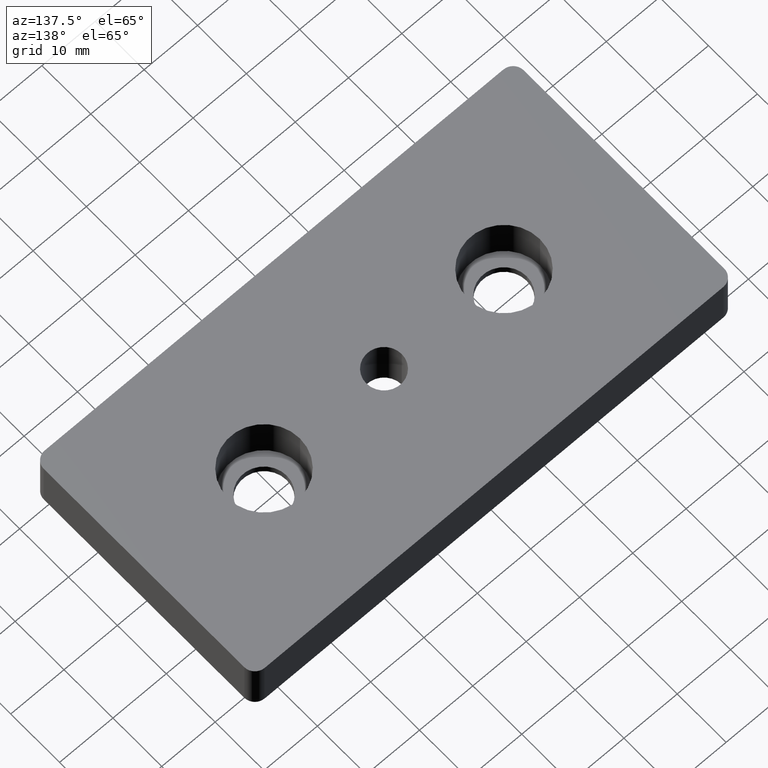
[diagram: clean part render]
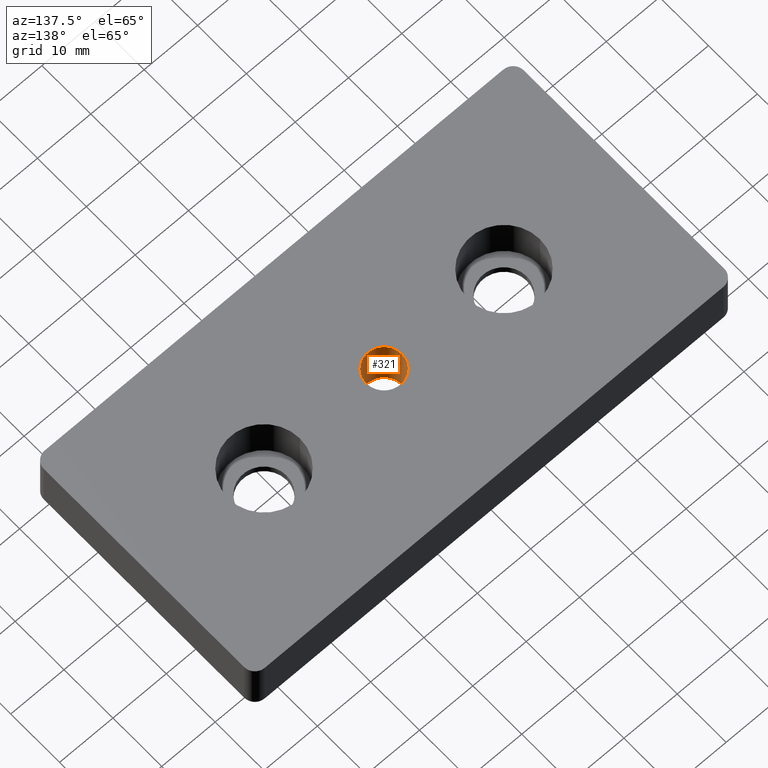
[diagram: same view with one face highlighted and labeled with its STEP entity id]
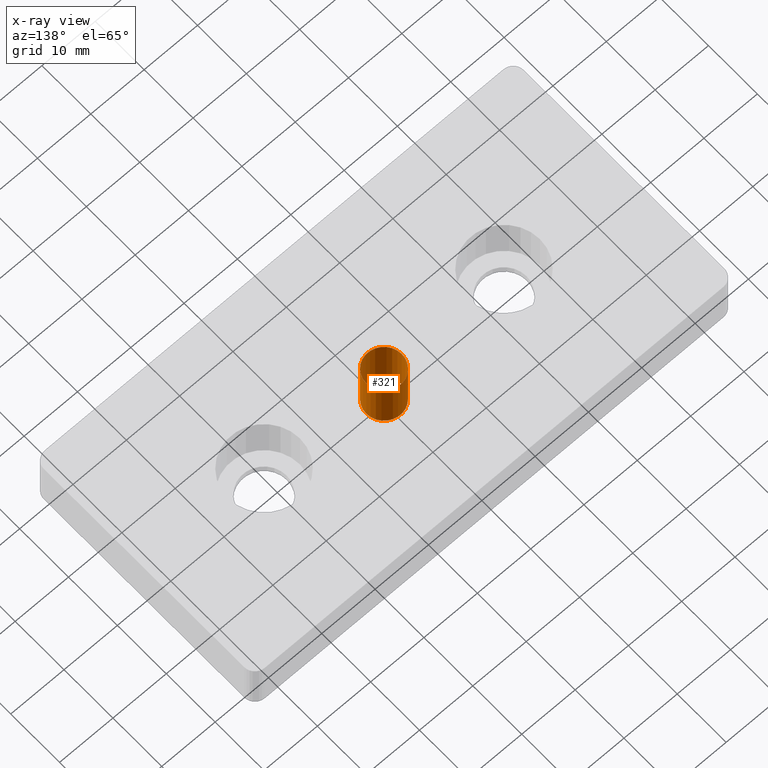
[diagram: x-ray of the same camera — body ghosted, the highlighted face saturated]
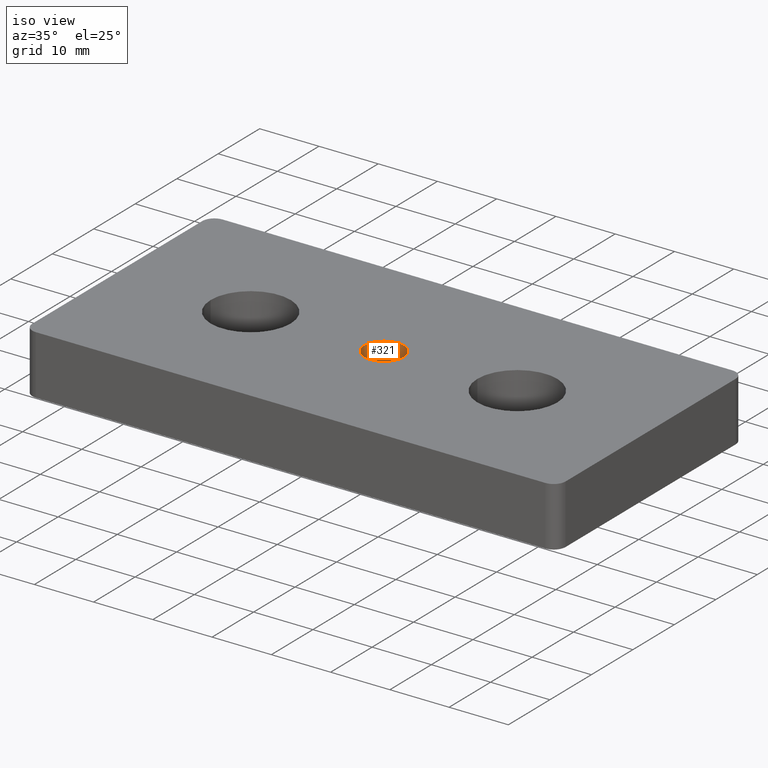
[diagram: same view with one face highlighted and labeled with its STEP entity id]
A machine part, auxiliary view. The second image highlights one B-rep face of the part: STEP entity #321.
The next image is the same camera in x-ray: the body ghosted, the highlighted face saturated — about 1% of this face is hidden behind the body in this view.
A second angle (iso view) of the same face is appended — the face is thin or edge-on in the first view.
In plain terms, the highlighted cylindrical surface (bore or boss wall) has radius 3.3235 mm, axis along (0, 0, 1).
Its self-contained STEP definition (entity closure, byte-faithful):
#32=FACE_OUTER_BOUND('',#49,.T.);
#49=EDGE_LOOP('',(#220,#221,#222,#223,#224));
#74=LINE('',#514,#95);
#95=VECTOR('',#408,3.3235);
#116=CIRCLE('',#359,3.3235);
#117=CIRCLE('',#360,3.3235);
#118=CIRCLE('',#361,3.3235);
#141=VERTEX_POINT('',#509);
#142=VERTEX_POINT('',#510);
#143=VERTEX_POINT('',#513);
#174=EDGE_CURVE('',#141,#142,#116,.T.);
#175=EDGE_CURVE('',#142,#141,#117,.T.);
#176=EDGE_CURVE('',#142,#143,#74,.T.);
#177=EDGE_CURVE('',#143,#143,#118,.T.);
#220=ORIENTED_EDGE('',*,*,#174,.F.);
#221=ORIENTED_EDGE('',*,*,#175,.F.);
#222=ORIENTED_EDGE('',*,*,#176,.T.);
#223=ORIENTED_EDGE('',*,*,#177,.F.);
#224=ORIENTED_EDGE('',*,*,#176,.F.);
#312=CYLINDRICAL_SURFACE('',#358,3.3235);
#321=ADVANCED_FACE('',(#32),#312,.F.);
#358=AXIS2_PLACEMENT_3D('',#508,#402,#403);
#359=AXIS2_PLACEMENT_3D('',#511,#404,#405);
#360=AXIS2_PLACEMENT_3D('',#512,#406,#407);
#361=AXIS2_PLACEMENT_3D('',#515,#409,#410);
#402=DIRECTION('center_axis',(0.,0.,1.));
#403=DIRECTION('ref_axis',(1.,0.,0.));
#404=DIRECTION('center_axis',(0.,0.,-1.));
#405=DIRECTION('ref_axis',(1.,0.,0.));
#406=DIRECTION('center_axis',(0.,0.,-1.));
#407=DIRECTION('ref_axis',(1.,0.,0.));
#408=DIRECTION('',(0.,0.,-1.));
#409=DIRECTION('center_axis',(0.,0.,1.));
#410=DIRECTION('ref_axis',(1.,0.,0.));
#508=CARTESIAN_POINT('Origin',(0.,0.,-91.1187420807834));
#509=CARTESIAN_POINT('',(3.3235,0.,10.));
#510=CARTESIAN_POINT('',(-3.3235,-4.07011363696623E-16,10.));
#511=CARTESIAN_POINT('Origin',(0.,0.,10.));
#512=CARTESIAN_POINT('Origin',(0.,0.,10.));
#513=CARTESIAN_POINT('',(-3.3235,-4.07011363696623E-16,0.));
#514=CARTESIAN_POINT('',(-3.3235,-4.07011363696623E-16,-91.1187420807834));
#515=CARTESIAN_POINT('Origin',(0.,0.,0.));